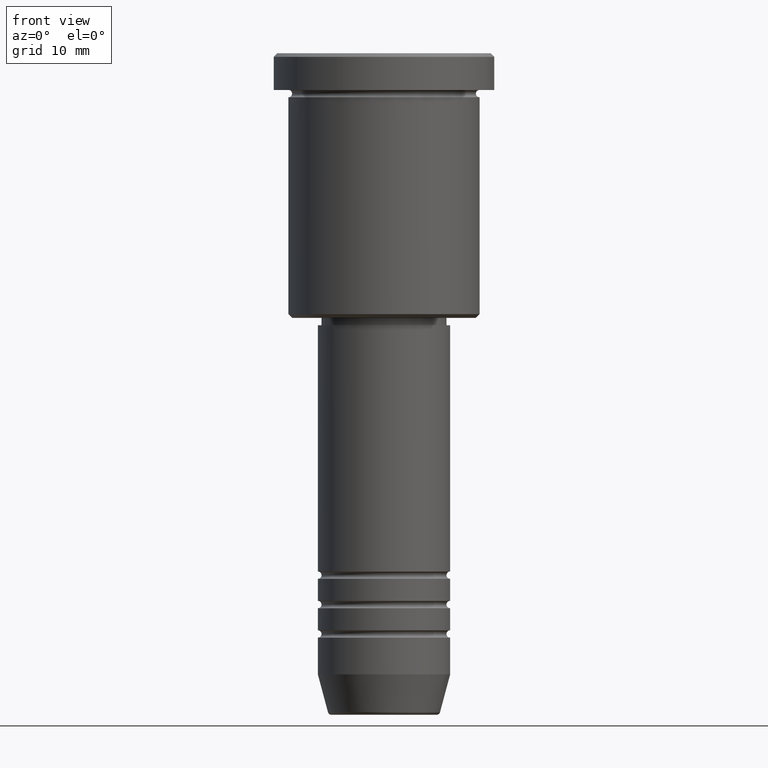
[diagram: clean part render]
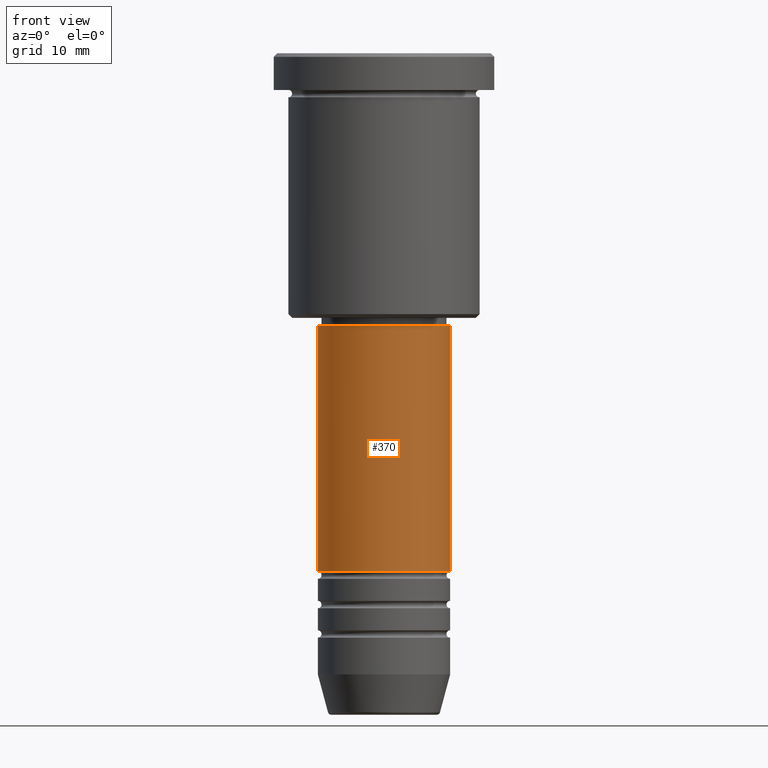
[diagram: same view with one face highlighted and labeled with its STEP entity id]
A machine part, front view. The second image highlights one B-rep face of the part: STEP entity #370.
In plain terms, the highlighted cylindrical surface (partial cylindrical patch) has radius 9 mm, axis along (-0, -0, 1).
Its self-contained STEP definition (entity closure, byte-faithful):
#8 = VECTOR ( 'NONE', #72, 1000.000000000000000 ) ;
#39 = ORIENTED_EDGE ( 'NONE', *, *, #547, .T. ) ;
#72 = DIRECTION ( 'NONE',  ( -0.000000000000000000, -0.000000000000000000, 1.000000000000000000 ) ) ;
#82 = CARTESIAN_POINT ( 'NONE',  ( 8.999999999999998224, 0.000000000000000000, -37.00000000000000711 ) ) ;
#86 = CARTESIAN_POINT ( 'NONE',  ( -9.000000000000000000, 1.102182119232617714E-15, 0.000000000000000000 ) ) ;
#108 = CIRCLE ( 'NONE', #288, 9.000000000000001776 ) ;
#179 = CARTESIAN_POINT ( 'NONE',  ( 0.000000000000000000, 0.000000000000000000, -70.49999999999998579 ) ) ;
#183 = CARTESIAN_POINT ( 'NONE',  ( 0.000000000000000000, 0.000000000000000000, -37.00000000000000711 ) ) ;
#220 = DIRECTION ( 'NONE',  ( -0.000000000000000000, -0.000000000000000000, 1.000000000000000000 ) ) ;
#267 = ORIENTED_EDGE ( 'NONE', *, *, #573, .F. ) ;
#288 = AXIS2_PLACEMENT_3D ( 'NONE', #179, #800, #385 ) ;
#327 = CYLINDRICAL_SURFACE ( 'NONE', #1140, 9.000000000000000000 ) ;
#370 = ADVANCED_FACE ( 'NONE', ( #666 ), #327, .T. ) ;
#385 = DIRECTION ( 'NONE',  ( 1.000000000000000000, 0.000000000000000000, 0.000000000000000000 ) ) ;
#428 = VERTEX_POINT ( 'NONE', #607 ) ;
#447 = CARTESIAN_POINT ( 'NONE',  ( 9.000000000000001776, 0.000000000000000000, -70.49999999999998579 ) ) ;
#468 = VERTEX_POINT ( 'NONE', #447 ) ;
#491 = VERTEX_POINT ( 'NONE', #82 ) ;
#503 = DIRECTION ( 'NONE',  ( 1.000000000000000000, 0.000000000000000000, 0.000000000000000000 ) ) ;
#507 = LINE ( 'NONE', #782, #8 ) ;
#530 = CIRCLE ( 'NONE', #785, 8.999999999999998224 ) ;
#545 = DIRECTION ( 'NONE',  ( -0.000000000000000000, -0.000000000000000000, 1.000000000000000000 ) ) ;
#547 = EDGE_CURVE ( 'NONE', #428, #468, #108, .T. ) ;
#573 = EDGE_CURVE ( 'NONE', #428, #989, #919, .T. ) ;
#603 = EDGE_LOOP ( 'NONE', ( #267, #39, #710, #706 ) ) ;
#607 = CARTESIAN_POINT ( 'NONE',  ( -9.000000000000001776, 1.102182119232617911E-15, -70.49999999999998579 ) ) ;
#654 = EDGE_CURVE ( 'NONE', #989, #491, #530, .T. ) ;
#666 = FACE_OUTER_BOUND ( 'NONE', #603, .T. ) ;
#706 = ORIENTED_EDGE ( 'NONE', *, *, #654, .F. ) ;
#710 = ORIENTED_EDGE ( 'NONE', *, *, #842, .T. ) ;
#720 = DIRECTION ( 'NONE',  ( 1.000000000000000000, 0.000000000000000000, 0.000000000000000000 ) ) ;
#779 = CARTESIAN_POINT ( 'NONE',  ( -8.999999999999998224, 1.102182119232617714E-15, -37.00000000000000711 ) ) ;
#782 = CARTESIAN_POINT ( 'NONE',  ( 9.000000000000000000, 0.000000000000000000, 0.000000000000000000 ) ) ;
#785 = AXIS2_PLACEMENT_3D ( 'NONE', #183, #545, #720 ) ;
#800 = DIRECTION ( 'NONE',  ( -0.000000000000000000, -0.000000000000000000, 1.000000000000000000 ) ) ;
#842 = EDGE_CURVE ( 'NONE', #468, #491, #507, .T. ) ;
#919 = LINE ( 'NONE', #86, #1023 ) ;
#989 = VERTEX_POINT ( 'NONE', #779 ) ;
#1023 = VECTOR ( 'NONE', #1182, 1000.000000000000000 ) ;
#1025 = CARTESIAN_POINT ( 'NONE',  ( 0.000000000000000000, 0.000000000000000000, 0.000000000000000000 ) ) ;
#1140 = AXIS2_PLACEMENT_3D ( 'NONE', #1025, #220, #503 ) ;
#1182 = DIRECTION ( 'NONE',  ( -0.000000000000000000, -0.000000000000000000, 1.000000000000000000 ) ) ;